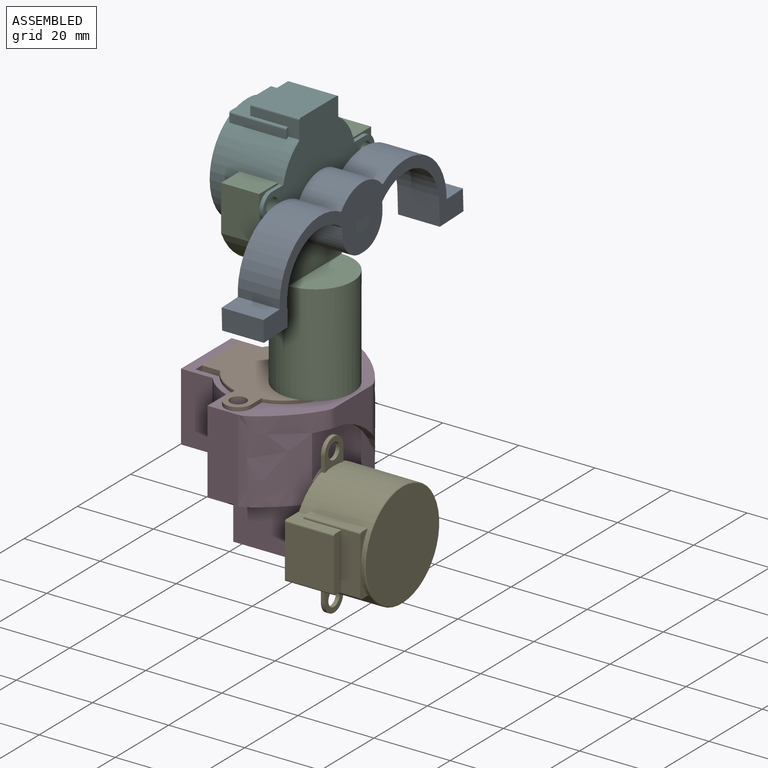
[diagram: assembled view]
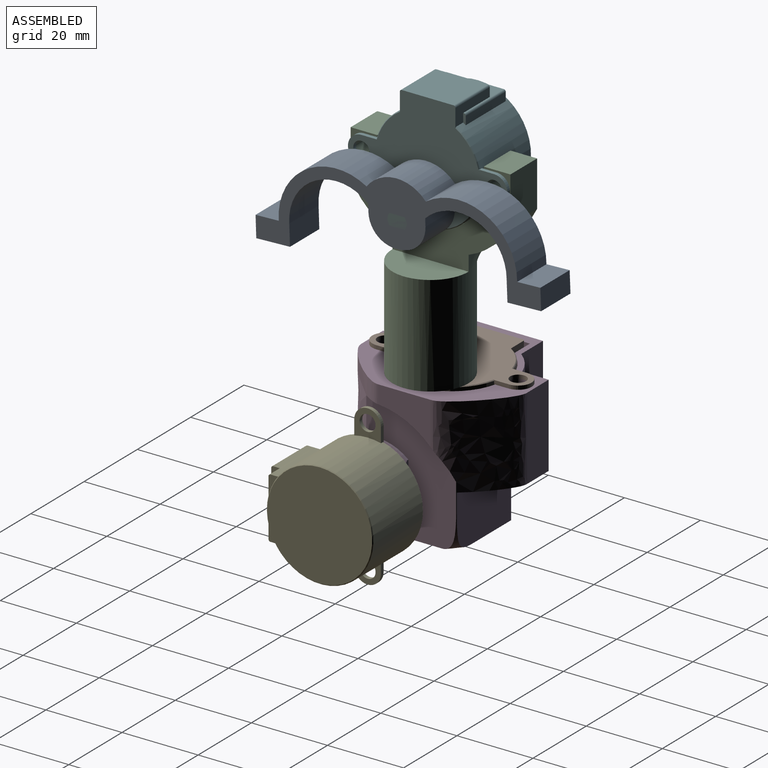
[diagram: assembled view, second angle]
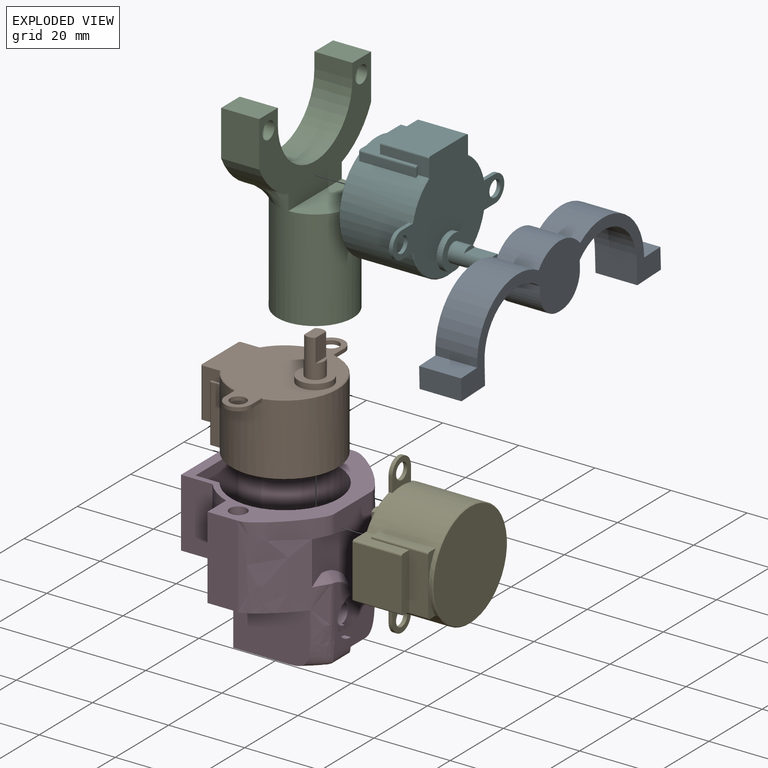
[diagram: exploded view]
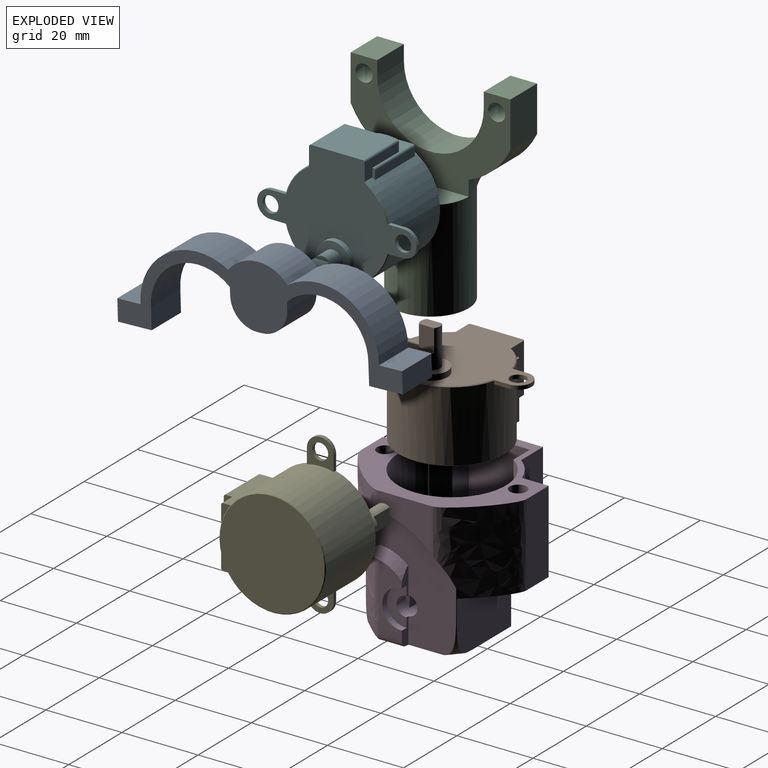
[diagram: exploded view, second angle]
ASSEMBLY  parts=6 mates=6
PART A: 20 faces, bbox 74.9x11x22.7 mm
  f0: plane 11x5.5mm, normal (-1,0,0), area 60.5mm2, adj f1,f15,f16,f17
  f1: plane 11x8.86mm, normal (0,0,-1), area 97.5mm2, adj f0,f2,f16,f17
  f2: plane 11x5.5mm, normal (1,0,0), area 60.5mm2, adj f1,f3,f16,f17
  f3: plane 11x6.1mm, normal (0,0,1), area 67.1mm2, adj f2,f4,f16,f17
  f4: cylinder r=15.32mm len=23.57mm, axis (0,1,0), area 367mm2, adj f3,f5,f16,f17
  f5: cylinder r=10mm len=15.58mm, axis (0,1,0), area 196.5mm2, adj f4,f6,f16,f17
  f6: cylinder r=15.32mm len=23.57mm, axis (0,1,0), area 367mm2, adj f5,f7,f16,f17
  f7: plane 11x6.1mm, normal (0,0,1), area 67.1mm2, adj f6,f8,f16,f17
  f8: plane 11x5.5mm, normal (-1,0,0), area 60.5mm2, adj f7,f9,f16,f17
  f9: plane 11x8.86mm, normal (0,0,-1), area 97.5mm2, adj f8,f10,f16,f17
  f10: plane 11x5.5mm, normal (1,0,0), area 60.5mm2, adj f9,f11,f16,f17
  f11: cylinder r=12.5mm len=21.09mm, axis (0,1,0), area 324.7mm2, adj f10,f12,f16,f17
  f12: plane 11x2mm, normal (-1,0,0), area 22mm2, adj f11,f16,f17,f18
  f13: plane 11x1mm, normal (0,0,-1), area 11mm2, adj f16,f17,f18,f19
  f14: plane 11x2mm, normal (1,0,0), area 22mm2, adj f15,f16,f17,f19
  f15: cylinder r=12.5mm len=21.09mm, axis (0,1,0), area 324.7mm2, adj f0,f14,f16,f17
  f16: plane 74.92x22.73mm, normal (0,-1,0), area 496.8mm2, adj f0,f1,f2,f3,f4,f5,f6,f7
  f17: plane 74.92x22.73mm, normal (0,1,0), area 496.8mm2, adj f0,f1,f2,f3,f4,f5,f6,f7
  f18: cylinder r=7mm len=11mm, axis (0,1,0), area 121mm2, adj f12,f13,f16,f17
  f19: cylinder r=7mm len=11mm, axis (0,-1,0), area 121mm2, adj f13,f14,f16,f17
PART B: 39 faces, bbox 41.9x31x30.5 mm
  f0: plane 12.9x4.79mm, normal (-1,0,0), area 36.2mm2, adj f4,f5,f20,f28,f29,f35,f38
  f1: plane 13.6x12.9mm, normal (0,-1,0), area 175.4mm2, adj f5,f34,f35,f38
  f2: plane 12.9x4.79mm, normal (1,0,0), area 36.2mm2, adj f4,f5,f19,f29,f33,f34,f38
  f3: plane 5x3mm, normal (0,0,1), area 14mm2, adj f23,f24,f26
  f4: cylinder r=14mm len=28mm, axis (0,0,-1), area 1327.9mm2, adj f0,f2,f7,f10,f11,f12,f13,f16
  f5: plane 41.88x30.8mm, normal (0,0,1), area 655mm2, adj f0,f1,f2,f7,f8,f9,f10,f12
  f6: plane 27.6x27.6mm, normal (0,0,-1), area 598.3mm2, adj f17
  f7: plane 4.15x1mm, normal (0,-1,0), area 4mm2, adj f4,f5,f8,f11,f19
  f8: cylinder r=3.5mm len=7mm, axis (0,0,1), area 10.9mm2, adj f5,f7,f10,f11
  f9: cylinder r=2.1mm len=4.2mm, axis (0,0,1), area 13.2mm2, adj f5,f11
  f10: plane 4.15x1mm, normal (0,1,0), area 4mm2, adj f4,f5,f8,f11,f18
  f11: plane 7.39x7mm, normal (0,0,-1), area 30.5mm2, adj f4,f7,f8,f9,f10
  f12: plane 4.15x1mm, normal (0,-1,0), area 4mm2, adj f4,f5,f14,f16,f20
  f13: plane 4.15x1mm, normal (0,1,0), area 4mm2, adj f4,f5,f14,f16,f18
  f14: cylinder r=3.5mm len=7mm, axis (0,0,1), area 10.9mm2, adj f5,f12,f13,f16
  f15: cylinder r=2.1mm len=4.2mm, axis (0,0,1), area 13.2mm2, adj f5,f16
  f16: plane 7.39x7mm, normal (0,0,-1), area 30.5mm2, adj f4,f12,f13,f14,f15
  f17: cone r=14mm half-angle=45deg, axis (0,0,1), area 24.7mm2, adj f4,f6
  f18: cone r=13.8mm half-angle=45deg, axis (0,0,-1), area 10.3mm2, adj f4,f5,f10,f13
  f19: cone r=13.8mm half-angle=45deg, axis (0,0,-1), area 3mm2, adj f2,f4,f5,f7
  f20: cone r=13.8mm half-angle=45deg, axis (0,0,-1), area 3mm2, adj f0,f4,f5,f12
  f21: cylinder r=4.5mm len=9mm, axis (0,0,-1), area 42.4mm2, adj f5,f22
  f22: plane 9x9mm, normal (0,0,1), area 44mm2, adj f21,f23
  f23: cylinder r=2.5mm len=10mm, axis (0,0,-1), area 101.4mm2, adj f3,f22,f24,f25,f26,f27
  f24: plane 6x4mm, normal (0,-1,0), area 24mm2, adj f3,f23,f25
  f25: plane 4x1mm, normal (0,0,1), area 2.8mm2, adj f23,f24
  f26: plane 6x4mm, normal (0,1,0), area 24mm2, adj f3,f23,f27
  f27: plane 4x1mm, normal (0,0,1), area 2.8mm2, adj f23,f26
  f28: plane 2.71x0.7mm, normal (0,0,1), area 1.7mm2, adj f0,f4,f29,f30,f37
  f29: plane 15x15mm, normal (0,-1,0), area 79mm2, adj f0,f2,f28,f32,f33,f36,f37,f38
  f30: plane 15x2.21mm, normal (-1,0,0), area 33.2mm2, adj f4,f28,f32,f37
  f31: plane 15x2.21mm, normal (1,0,0), area 33.2mm2, adj f4,f32,f33,f36
  f32: plane 16x2.71mm, normal (0,0,-1), area 16mm2, adj f4,f29,f30,f31,f36,f37
  f33: plane 2.71x0.7mm, normal (0,0,1), area 1.7mm2, adj f2,f4,f29,f31,f36
  f34: cylinder r=0.5mm len=12.9mm, axis (0,0,1), area 10.1mm2, adj f1,f2,f5,f38
  f35: cylinder r=0.5mm len=12.9mm, axis (0,0,-1), area 10.1mm2, adj f0,f1,f5,f38
  f36: cylinder r=0.5mm len=15mm, axis (0,0,1), area 11.8mm2, adj f29,f31,f32,f33
  f37: cylinder r=0.5mm len=15mm, axis (0,0,1), area 11.8mm2, adj f28,f29,f30,f32
  f38: plane 14.6x2.8mm, normal (0,0,-1), area 40.8mm2, adj f0,f1,f2,f29,f34,f35
PART C: 33 faces, bbox 20x42x52.5 mm
  f0: plane 20.01x10.08mm, normal (0,0,1), area 157.1mm2, adj f8,f29
  f1: plane 11x11mm, normal (0,0,-1), area 66.8mm2, adj f12,f14
  f2: plane 4.47x1mm, normal (0,0,-1), area 3.1mm2, adj f7,f12
  f3: plane 4.47x1mm, normal (0,0,-1), area 3.1mm2, adj f5,f12
  f4: plane 7x4mm, normal (1,0,0), area 28mm2, adj f5,f7,f9,f10,f16
  f5: plane 7x6mm, normal (0,-1,0), area 42mm2, adj f3,f4,f6,f10,f13,f16
  f6: plane 7x4mm, normal (-1,0,0), area 28mm2, adj f5,f7,f11,f13,f16
  f7: plane 7x6mm, normal (0,1,0), area 42mm2, adj f2,f4,f6,f9,f11,f16
  f8: cylinder r=10mm len=26.5mm, axis (0,0,-1), area 1665mm2, adj f0,f15,f30,f31,f32
  f9: plane 2x0.76mm, normal (0,0,1), area 0.5mm2, adj f4,f7,f12
  f10: plane 2x0.76mm, normal (0,0,1), area 0.5mm2, adj f4,f5,f12
  f11: plane 2x0.76mm, normal (0,0,1), area 0.5mm2, adj f6,f7,f12
  f12: cylinder r=3mm len=6mm, axis (0,0,1), area 66mm2, adj f1,f2,f3,f9,f10,f11,f13
  f13: plane 2x0.76mm, normal (0,0,1), area 0.5mm2, adj f5,f6,f12
  f14: cylinder r=5.5mm len=11mm, axis (0,0,1), area 69.1mm2, adj f1,f15
  f15: plane 20x20mm, normal (0,0,-1), area 219.1mm2, adj f8,f14
  f16: plane 6x4mm, normal (0,0,-1), area 24mm2, adj f4,f5,f6,f7
  f17: cylinder r=20mm len=11mm, axis (-1,0,0), area 152.5mm2, adj f18,f28,f29,f30
  f18: plane 12x10mm, normal (0,1,0), area 120mm2, adj f17,f19,f28,f29
  f19: plane 10x7mm, normal (0,0,1), area 70mm2, adj f18,f20,f28,f29
  f20: plane 10x4mm, normal (0,-1,0), area 40mm2, adj f19,f21,f28,f29
  f21: cylinder r=14mm len=28mm, axis (-1,0,0), area 439.8mm2, adj f20,f22,f28,f29
  f22: plane 10x4mm, normal (0,1,0), area 40mm2, adj f21,f23,f28,f29
  f23: plane 10x7mm, normal (0,0,1), area 70mm2, adj f22,f24,f28,f29
  f24: plane 12x10mm, normal (0,-1,0), area 120mm2, adj f23,f27,f28,f29
  f25: cylinder r=2.25mm len=10mm, axis (-1,0,0), area 141.4mm2, adj f28,f29
  f26: cylinder r=2.25mm len=10mm, axis (-1,0,0), area 141.4mm2, adj f28,f29
  f27: cylinder r=20mm len=11mm, axis (-1,0,0), area 152.5mm2, adj f24,f28,f29,f32
  f28: plane 42x22.03mm, normal (1,0,0), area 391.8mm2, adj f17,f18,f19,f20,f21,f22,f23,f24
  f29: plane 42x26.03mm, normal (-1,0,0), area 471.8mm2, adj f0,f17,f18,f19,f20,f21,f22,f23
  f30: bspline ~10x5mm, area 44.7mm2, adj f8,f17,f29,f31
  f31: bspline ~20x4mm, area 62.4mm2, adj f8,f28,f30,f32
  f32: bspline ~10x5mm, area 44.7mm2, adj f8,f27,f29,f31
PART D: 48 faces, bbox 42x47x43.1 mm
  f0: plane 4x1mm, normal (1,0,0), area 2.8mm2, adj f43,f45
  f1: plane 7.23x2.72mm, normal (0,1,0), area 10.3mm2, adj f5,f36,f38,f39,f41,f42,f43
  f2: plane 6.76x2.48mm, normal (0,1,0), area 11.6mm2, adj f3,f38,f41,f42,f43
  f3: bspline ~31.07x10mm, area 194.5mm2, adj f2,f4,f5,f26,f30,f38,f41
  f4: bspline ~15x15mm, area 20.1mm2, adj f3,f8,f9,f34,f38
  f5: plane 9.62x6.02mm, normal (1,0,0), area 33mm2, adj f1,f3,f6,f39,f41
  f6: bspline ~39.6x15mm, area 437.7mm2, adj f5,f19,f20,f25,f30,f32,f33,f37
  f7: plane 43.55x36mm, normal (-1,0,0), area 755.6mm2, adj f9,f10,f14,f18,f19,f21,f25,f26
  f8: bspline ~39.6x15mm, area 438mm2, adj f4,f20,f21,f25,f34,f35,f37,f38
  f9: bspline ~13x10mm, area 1.8mm2, adj f4,f7,f26,f34
  f10: plane 29.54x15.5mm, normal (0,0,-1), area 96.3mm2, adj f7,f11,f12,f13,f14,f15,f16,f17
  f11: plane 18x6.18mm, normal (0,-1,0), area 111.2mm2, adj f10,f12,f24,f25
  f12: cylinder r=14.15mm len=28.3mm, axis (0,0,1), area 1294.2mm2, adj f10,f11,f13,f25,f27
  f13: plane 18x6.3mm, normal (0,1,0), area 113.4mm2, adj f10,f12,f24,f25
  f14: cylinder r=15.65mm len=18mm, axis (0,0,1), area 165.9mm2, adj f7,f10,f15,f25
  f15: plane 18x8.17mm, normal (0,1,0), area 147mm2, adj f10,f14,f16,f25
  f16: plane 19x18mm, normal (-1,0,0), area 342mm2, adj f10,f15,f17,f25
  f17: plane 18x8.3mm, normal (0,-1,0), area 149.4mm2, adj f10,f16,f18,f25
  f18: cylinder r=15.65mm len=18mm, axis (0,0,1), area 161.9mm2, adj f7,f10,f17,f25
  f19: plane 21.66x8mm, normal (0,-1,0), area 173.3mm2, adj f6,f7,f25,f33
  f20: plane 13.54x11.2mm, normal (1,0,0), area 94.9mm2, adj f6,f8,f25,f37
  f21: plane 21.66x8mm, normal (0,1,0), area 173.3mm2, adj f7,f8,f25,f35
  f22: cylinder r=2.25mm len=18mm, axis (0,0,1), area 254.5mm2, adj f25,f28
  f23: cylinder r=2.25mm len=18mm, axis (0,0,1), area 254.5mm2, adj f25,f29
  f24: plane 18x16mm, normal (1,0,0), area 288mm2, adj f10,f11,f13,f25
  f25: plane 47.04x42mm, normal (0,0,1), area 452mm2, adj f6,f7,f8,f11,f12,f13,f14,f15
  f26: plane 23.54x13mm, normal (0,0,-1), area 306.1mm2, adj f3,f7,f9,f31
  f27: plane 28.3x19.32mm, normal (0,0,1), area 457.5mm2, adj f7,f12
  f28: plane 4.5x4.5mm, normal (0,0,1), area 15.9mm2, adj f22
  f29: plane 4.5x4.5mm, normal (0,0,1), area 15.9mm2, adj f23
  f30: bspline ~15x15mm, area 76.8mm2, adj f3,f6,f31,f32
  f31: bspline ~13x10mm, area 4.1mm2, adj f7,f26,f30,f32
  f32: plane 20.28x14.34mm, normal (0,-1,0), area 285.4mm2, adj f6,f7,f30,f31,f33
  f33: plane 20.28x9.68mm, normal (0,0,-1), area 149.6mm2, adj f6,f7,f19,f32
  f34: plane 20.42x14.34mm, normal (0,1,0), area 287.5mm2, adj f4,f7,f8,f9,f35
  f35: plane 20.42x9.86mm, normal (0,0,-1), area 153.2mm2, adj f7,f8,f21,f34
  f36: cylinder r=12.5mm len=7.39mm, axis (1,0,0), area 3.6mm2, adj f1,f38,f39,f40
  f37: cylinder r=22mm len=23.61mm, axis (1,0,0), area 56.4mm2, adj f6,f8,f20,f38
  f38: plane 31.5x23.85mm, normal (1,0,0), area 412.8mm2, adj f1,f2,f3,f4,f6,f8,f36,f37
  f39: cone r=10.5mm half-angle=45deg, axis (-1,0,0), area 19.3mm2, adj f1,f5,f36,f40
  f40: bspline ~5.62x4.23mm, area 10.9mm2, adj f6,f36,f38,f39
  f41: cylinder r=5mm len=10mm, axis (1,0,0), area 28.4mm2, adj f1,f2,f3,f5,f42
  f42: plane 10x5.12mm, normal (1,0,0), area 30.1mm2, adj f1,f2,f41,f43
  f43: cylinder r=2.5mm len=9.5mm, axis (1,0,0), area 88.2mm2, adj f0,f1,f2,f38,f42,f44,f45,f46
  f44: plane 4x1mm, normal (1,0,0), area 2.8mm2, adj f43,f46
  f45: plane 6x4mm, normal (0,-1,0), area 24mm2, adj f0,f43,f47
  f46: plane 6x4mm, normal (0,1,0), area 24mm2, adj f43,f44,f47
  f47: plane 5x3mm, normal (1,0,0), area 14mm2, adj f43,f45,f46
PART E: same geometry as B
PART F: same geometry as B
PLACE A rot(axis=(0.02,0.02,-1),90deg) t=(-22.83,8.74,55.58)mm
PLACE B rot(axis=(0,0,-1),90deg) t=(-43.33,8.35,8.59)mm
PLACE C rot(axis=(0,0,1),180deg) t=(-35.33,8.35,33.09)mm
PLACE D t=(-43.16,8.36,3.93)mm
PLACE E rot(axis=(0,-1,0),90deg) t=(-6.23,-0.43,-0.08)mm fixed
PLACE F rot(axis=(-0.58,0.58,-0.58),120deg) t=(-53.33,8.29,76.12)mm
MATE revolute E.f21 <-> D.f43  axis (-1,0,0) through (-30.73,7.57,-0.08)mm
MATE fastened F.f8 <-> C.f25  axis (1,0,0) through (-34.33,-9.15,76.12)mm
MATE revolute A.f16 <-> F.f21  axis (-1,0,0) through (-33.83,8.29,68.12)mm
MATE revolute C.f12 <-> B.f21  axis (0,0,1) through (-35.33,8.35,33.09)mm
MATE fastened B.f14 <-> D.f22  axis (0,0,1) through (-43.33,25.79,27.59)mm
MATE fastened B.f8 <-> D.f23  axis (0,0,1) through (-43.33,-9.09,27.59)mm
